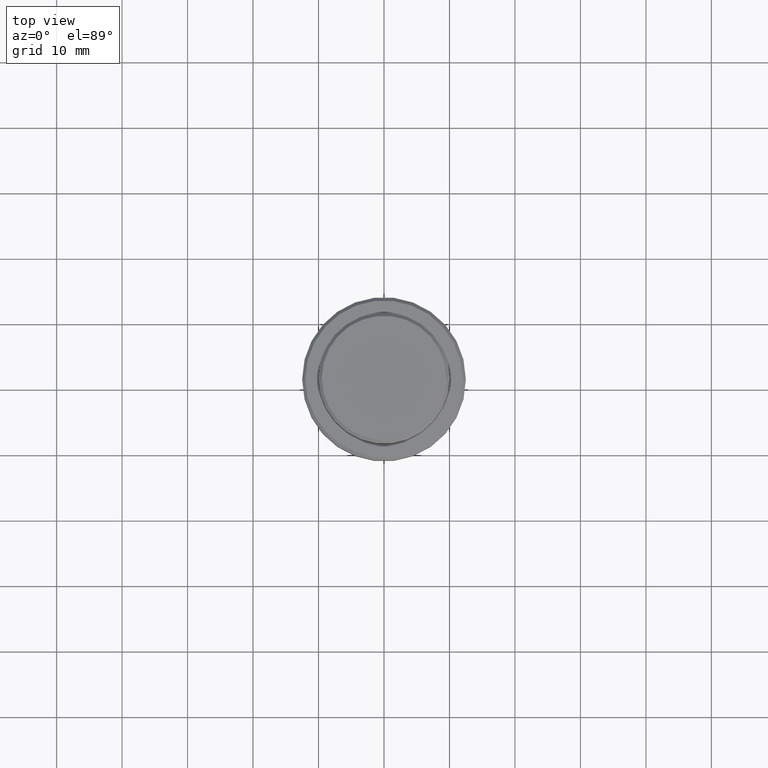
[diagram: clean part render]
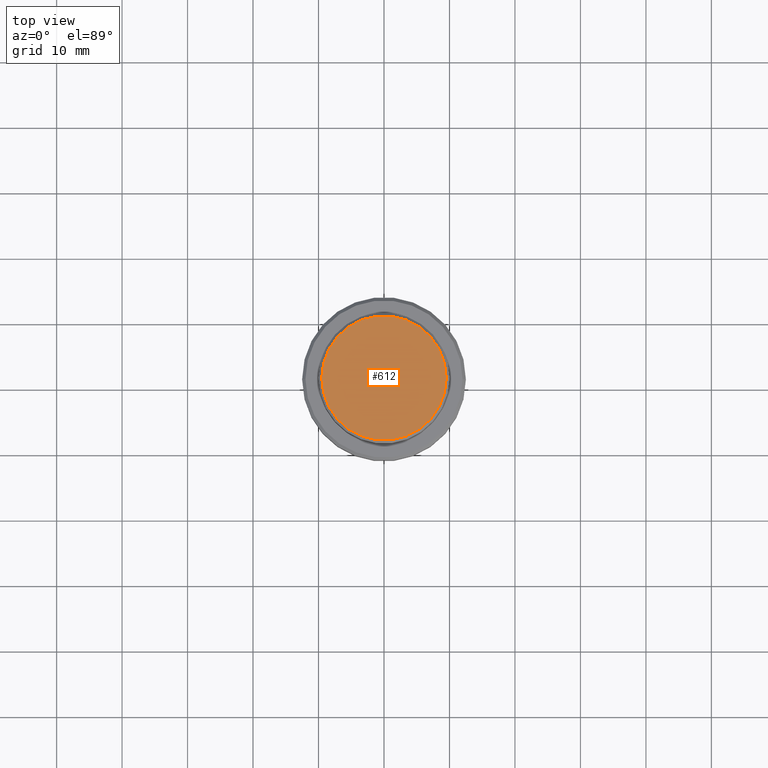
[diagram: same view with one face highlighted and labeled with its STEP entity id]
A machine part, top view. The second image highlights one B-rep face of the part: STEP entity #612.
In plain terms, the highlighted planar face has unit normal (0, -0, 1).
Its self-contained STEP definition (entity closure, byte-faithful):
#27 = VERTEX_POINT ( 'NONE', #984 ) ;
#122 = ORIENTED_EDGE ( 'NONE', *, *, #451, .T. ) ;
#126 = PLANE ( 'NONE',  #814 ) ;
#208 = AXIS2_PLACEMENT_3D ( 'NONE', #263, #256, #1120 ) ;
#216 = DIRECTION ( 'NONE',  ( 1.000000000000000000, 0.000000000000000000, 0.000000000000000000 ) ) ;
#256 = DIRECTION ( 'NONE',  ( -0.000000000000000000, -0.000000000000000000, 1.000000000000000000 ) ) ;
#263 = CARTESIAN_POINT ( 'NONE',  ( 0.000000000000000000, 0.000000000000000000, 0.000000000000000000 ) ) ;
#269 = VERTEX_POINT ( 'NONE', #1332 ) ;
#357 = EDGE_CURVE ( 'NONE', #269, #27, #553, .T. ) ;
#430 = DIRECTION ( 'NONE',  ( -0.000000000000000000, -0.000000000000000000, 1.000000000000000000 ) ) ;
#451 = EDGE_CURVE ( 'NONE', #27, #269, #669, .T. ) ;
#532 = ORIENTED_EDGE ( 'NONE', *, *, #357, .T. ) ;
#553 = CIRCLE ( 'NONE', #208, 9.499999999999980460 ) ;
#612 = ADVANCED_FACE ( 'NONE', ( #1226 ), #126, .T. ) ;
#669 = CIRCLE ( 'NONE', #1259, 9.499999999999980460 ) ;
#807 = DIRECTION ( 'NONE',  ( 0.000000000000000000, -0.000000000000000000, 1.000000000000000000 ) ) ;
#814 = AXIS2_PLACEMENT_3D ( 'NONE', #1388, #807, #821 ) ;
#821 = DIRECTION ( 'NONE',  ( 1.000000000000000000, 0.000000000000000000, 0.000000000000000000 ) ) ;
#984 = CARTESIAN_POINT ( 'NONE',  ( -9.499999999999980460, 0.000000000000000000, 0.000000000000000000 ) ) ;
#1112 = EDGE_LOOP ( 'NONE', ( #122, #532 ) ) ;
#1120 = DIRECTION ( 'NONE',  ( 1.000000000000000000, 0.000000000000000000, 0.000000000000000000 ) ) ;
#1226 = FACE_OUTER_BOUND ( 'NONE', #1112, .T. ) ;
#1259 = AXIS2_PLACEMENT_3D ( 'NONE', #1312, #430, #216 ) ;
#1312 = CARTESIAN_POINT ( 'NONE',  ( 0.000000000000000000, 0.000000000000000000, 0.000000000000000000 ) ) ;
#1332 = CARTESIAN_POINT ( 'NONE',  ( 9.499999999999980460, 1.194030629168668089E-15, 0.000000000000000000 ) ) ;
#1388 = CARTESIAN_POINT ( 'NONE',  ( 0.000000000000000000, 0.000000000000000000, 0.000000000000000000 ) ) ;